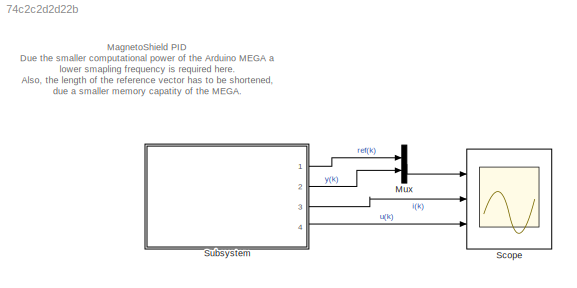
MODEL slx_74c2c2d2d22b
KIND model
CONFIG AbsTol = auto
CONFIG EnableMultiTasking = on
CONFIG FixedStep = auto
CONFIG MaxStep = auto
CONFIG MinStep = auto
CONFIG RelTol = 1e-3
CONFIG SampleTimeConstraint = Unconstrained
CONFIG Solver = FixedStepAuto
CONFIG SolverName = FixedStepAuto
CONFIG StartTime = 0.0
CONFIG StopTime = 20
BLOCK [Mux] Mux
  DisplayOption = bar
  Inputs = 2
  Ports = [2, 1]
BLOCK [Scope] Scope
  Floating = off
  NumInputPorts = 3
  Ports = [3]
  ScopeSpecificationString = Simulink.scopes.TimeScopeBlockCfg('CurrentConfiguration', extmgr.ConfigurationSet(extmgr.Configuration('Core','General UI',true),extmgr.Configuration('Core','Source UI',true),extmgr.Configuration('Sources','WiredSimulink',true),extmgr.Configuration('Visuals','Time Domain',true,'SerializedDisplays',{struct('MinYLimReal','-1.5','MaxYLimReal','13.5','YLabelReal','Position [mm]','MinYLimMag','0.00000'...<+2662ch>
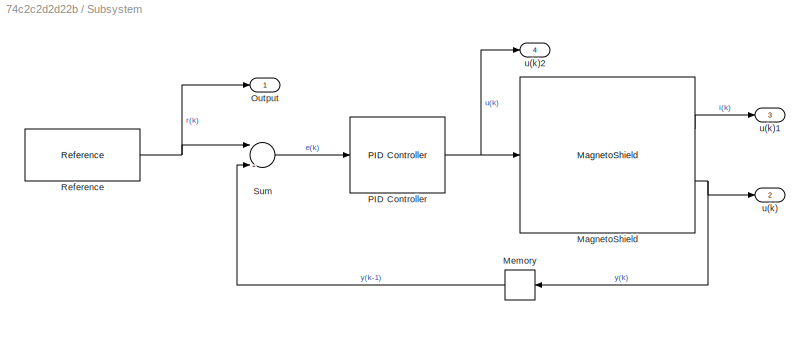
BLOCK [SubSystem] Subsystem
  Ports = [0, 4]
  RequestExecContextInheritance = off
BLOCK [Reference] Subsystem/MagnetoShield  REF=MagnetoLibrary/MagnetoShield
  Ports = [1, 2]
  SourceBlock = MagnetoLibrary/MagnetoShield
  SourceProductName = AutomationShield
BLOCK [Memory] Subsystem/Memory
  InheritSampleTime = on
BLOCK [Outport] Subsystem/Output
  IconDisplay = Signal name
BLOCK [Reference] Subsystem/PID Controller  REF=simulink/Continuous/PID Controller
  Ports = [1, 1]
  SourceBlock = simulink/Continuous/PID Controller
  SourceProductBaseCode = SL
  SourceType = PID 1dof
BLOCK [Reference] Subsystem/Reference  REF=CommonBlocks/Reference
  Ports = [0, 1]
  SourceBlock = CommonBlocks/Reference
  SourceProductName = AutomationShield
BLOCK [Sum] Subsystem/Sum
  InputSameDT = off
  Inputs = |-+
  OutDataTypeStr = Inherit: Inherit via internal rule
  Ports = [2, 1]
  SaturateOnIntegerOverflow = off
BLOCK [Outport] Subsystem/u(k)
  IconDisplay = Signal name
  Port = 2
BLOCK [Outport] Subsystem/u(k)1
  IconDisplay = Signal name
  Port = 3
BLOCK [Outport] Subsystem/u(k)2
  IconDisplay = Signal name
  Port = 4
ANNOTATION (root): MagnetoShield PID Due the smaller computational power of the Arduino MEGA a lower smapling frequency is required here. Also, the length of the reference vector has to be shortened, due a smaller memory capatity of the MEGA.
LINE Mux:1 -> Scope:1
LINE Subsystem/MagnetoShield:1 -> Subsystem/u(k)1:1
NET Subsystem/MagnetoShield:2 -> Subsystem/Memory:1, Subsystem/u(k):1
LINE Subsystem/Memory:1 -> Subsystem/Sum:2
NET Subsystem/PID Controller:1 -> Subsystem/MagnetoShield:1, Subsystem/u(k)2:1
NET Subsystem/Reference:1 -> Subsystem/Output:1, Subsystem/Sum:1
LINE Subsystem/Sum:1 -> Subsystem/PID Controller:1
LINE Subsystem:1 -> Mux:1
LINE Subsystem:2 -> Mux:2
LINE Subsystem:3 -> Scope:2
LINE Subsystem:4 -> Scope:3
note: NET lines group one-source signal fan-out (src -> all destinations, sorted); 1:1 wires keep LINE
